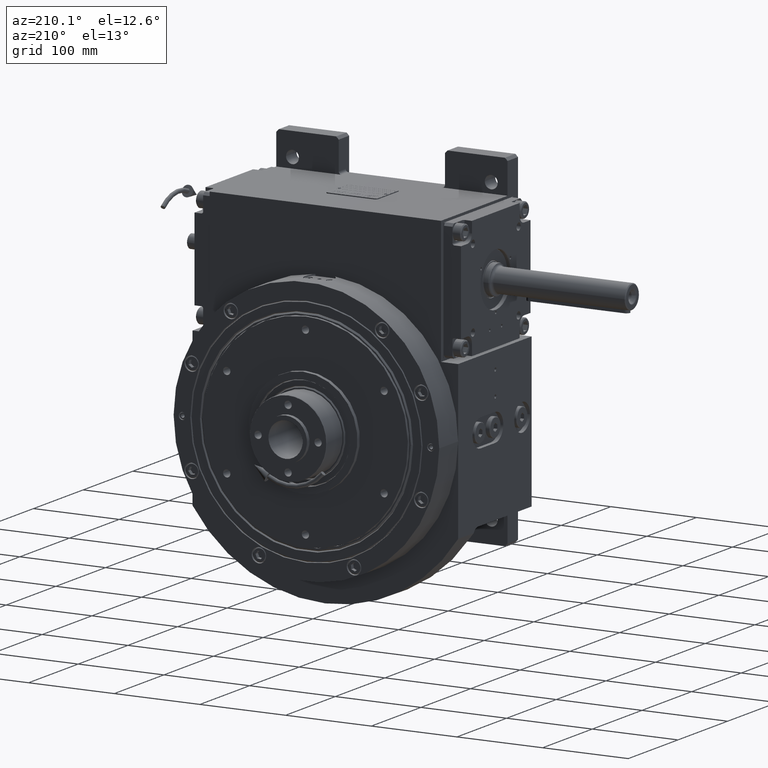
[diagram: clean part render]
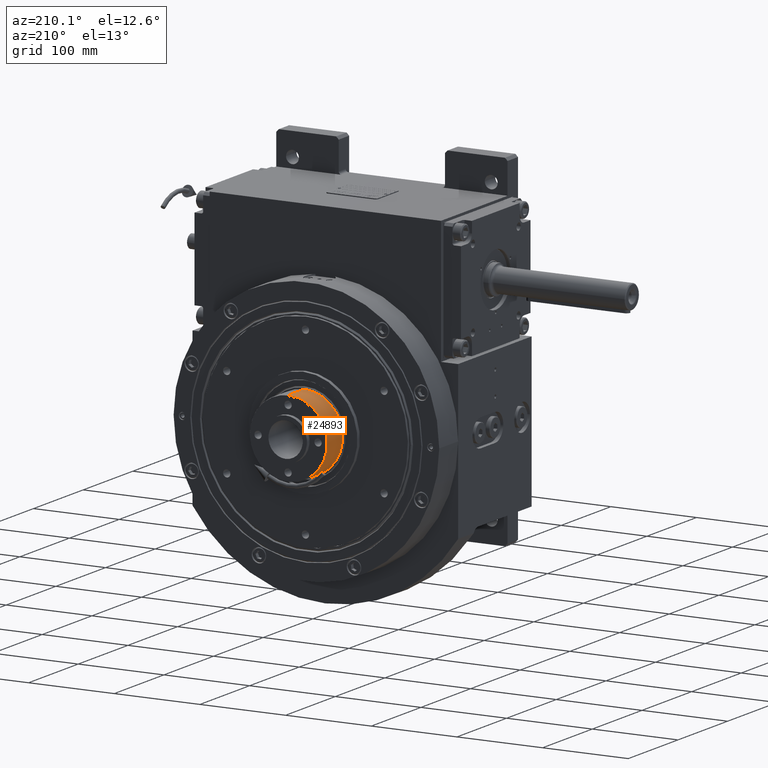
[diagram: same view with one face highlighted and labeled with its STEP entity id]
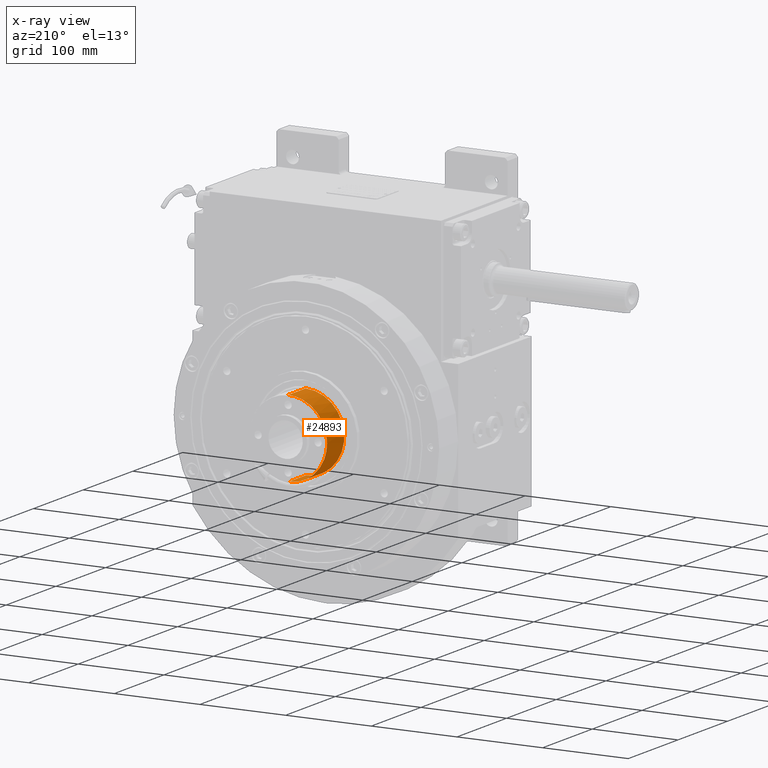
[diagram: x-ray of the same camera — body ghosted, the highlighted face saturated]
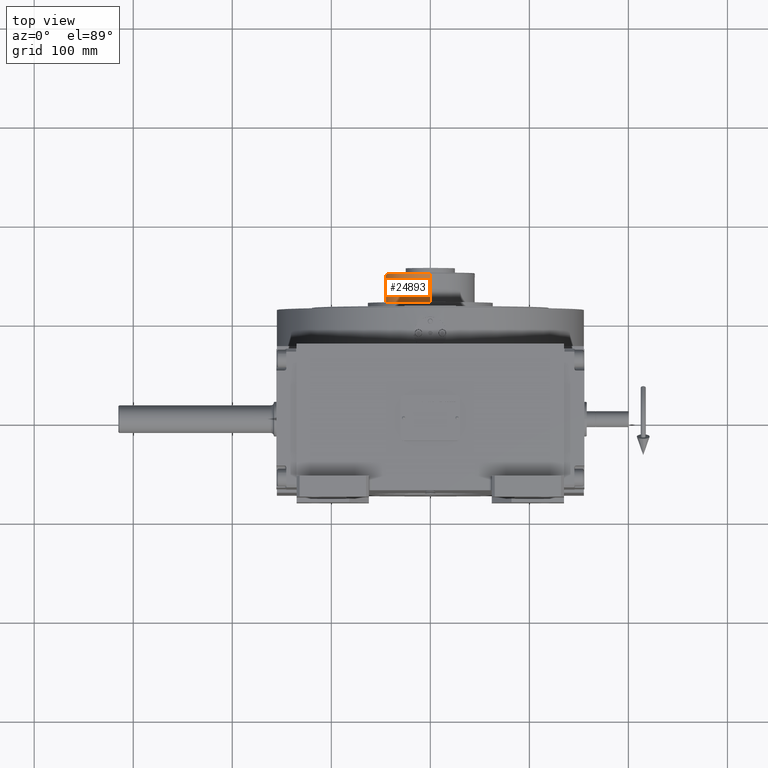
[diagram: same view with one face highlighted and labeled with its STEP entity id]
A machine part, auxiliary view. The second image highlights one B-rep face of the part: STEP entity #24893.
The next image is the same camera in x-ray: the body ghosted, the highlighted face saturated — about 0% of this face is hidden behind the body in this view.
A second angle (top view) of the same face is appended — the face is thin or edge-on in the first view.
In plain terms, the highlighted cylindrical surface (partial cylindrical patch) has radius 45 mm, axis along (0, -1, 0).
Its self-contained STEP definition (entity closure, byte-faithful):
#482 = CARTESIAN_POINT ( 'NONE',  ( -42.70167979977107109, -14.49970635574647559, -62.00000195355909227 ) ) ;
#1183 = CARTESIAN_POINT ( 'NONE',  ( -19.94180666511305233, -40.44748804383691265, -62.00000195355905674 ) ) ;
#1462 = EDGE_CURVE ( 'NONE', #19581, #42328, #16736, .T. ) ;
#2645 = DIRECTION ( 'NONE',  ( 0.000000000000000000, 0.000000000000000000, -1.000000000000000000 ) ) ;
#2760 = CARTESIAN_POINT ( 'NONE',  ( -45.00000000000000000, 0.000000000000000000, -10.99999999999999645 ) ) ;
#3346 = ORIENTED_EDGE ( 'NONE', *, *, #1462, .F. ) ;
#5642 = B_SPLINE_CURVE_WITH_KNOTS ( 'NONE', 3,
 ( #44366, #54690, #61136, #66113, #44024, #1183, #55412, #39005, #17965, #12250, #60419, #66822, #65776, #482, #60777, #6549, #28266, #33991 ),
 .UNSPECIFIED., .F., .F.,
 ( 4, 2, 2, 2, 2, 2, 2, 2, 4 ),
 ( 0.5000000000000000000, 0.5625000000000001110, 0.6250000000000001110, 0.6875000000000001110, 0.7500000000000002220, 0.8125000000000001110, 0.8750000000000000000, 0.9375000000000000000, 1.000000000000000000 ),
 .UNSPECIFIED. ) ;
#6549 = CARTESIAN_POINT ( 'NONE',  ( -44.70993137818921781, -5.890414101118349954, -62.00000195355912780 ) ) ;
#8702 = CARTESIAN_POINT ( 'NONE',  ( 29.73720732302872705, -33.90241057435635241, -62.00000195355895727 ) ) ;
#8731 = EDGE_CURVE ( 'NONE', #42328, #34488, #45811, .T. ) ;
#8872 = CARTESIAN_POINT ( 'NONE',  ( 0.000000000000000000, 0.000000000000000000, -27.49999999999999645 ) ) ;
#9719 = CARTESIAN_POINT ( 'NONE',  ( -45.00000000000000000, 0.000000000000000000, -27.49999999999999645 ) ) ;
#12051 = CARTESIAN_POINT ( 'NONE',  ( 45.00000000000000000, 5.510910596163089556E-15, -27.49999999999999645 ) ) ;
#12250 = CARTESIAN_POINT ( 'NONE',  ( -33.90241057435634531, -29.73720732302948377, -62.00000195355906385 ) ) ;
#13359 = CARTESIAN_POINT ( 'NONE',  ( 45.00000000000000000, 5.510910596163089556E-15, -10.99999999999999645 ) ) ;
#14557 = ORIENTED_EDGE ( 'NONE', *, *, #14661, .T. ) ;
#14661 = EDGE_CURVE ( 'NONE', #19581, #54683, #29479, .T. ) ;
#14726 = FACE_OUTER_BOUND ( 'NONE', #50665, .T. ) ;
#14751 = CARTESIAN_POINT ( 'NONE',  ( 40.44748804383596763, -19.94180666511282851, -62.00000195355895727 ) ) ;
#16733 = VERTEX_POINT ( 'NONE', #52173 ) ;
#16736 = CIRCLE ( 'NONE', #25846, 45.00000000000000000 ) ;
#17965 = CARTESIAN_POINT ( 'NONE',  ( -29.73720732302955838, -33.90241057435633820, -62.00000195355906385 ) ) ;
#19581 = VERTEX_POINT ( 'NONE', #9719 ) ;
#19762 = ORIENTED_EDGE ( 'NONE', *, *, #8731, .F. ) ;
#20111 = CARTESIAN_POINT ( 'NONE',  ( 19.94180666511218192, -40.44748804383692686, -62.00000195355899990 ) ) ;
#21632 = EDGE_CURVE ( 'NONE', #16733, #54683, #5642, .T. ) ;
#21921 = CARTESIAN_POINT ( 'NONE',  ( -45.00000134179759925, -5.520705812861970104E-08, -62.00000048850736079 ) ) ;
#24496 = DIRECTION ( 'NONE',  ( 0.000000000000000000, 0.000000000000000000, -1.000000000000000000 ) ) ;
#24893 = ADVANCED_FACE ( 'NONE', ( #14726 ), #36845, .T. ) ;
#25082 = CARTESIAN_POINT ( 'NONE',  ( 5.890414101117868562, -44.70993137818951624, -62.00000195355901411 ) ) ;
#25846 = AXIS2_PLACEMENT_3D ( 'NONE', #8872, #56354, #45982 ) ;
#28266 = CARTESIAN_POINT ( 'NONE',  ( -45.00000536736198598, -2.945243464033459713, -62.00000195355912780 ) ) ;
#29479 = LINE ( 'NONE', #2760, #37433 ) ;
#30434 = CARTESIAN_POINT ( 'NONE',  ( 22.55178302665163415, -39.05242661402575521, -62.00000195355900701 ) ) ;
#30790 = CARTESIAN_POINT ( 'NONE',  ( 35.77984741879979680, -27.44954390900534591, -62.00000195355895016 ) ) ;
#33991 = CARTESIAN_POINT ( 'NONE',  ( -45.00000134179759925, -5.520705812861970104E-08, -62.00000048850736079 ) ) ;
#34488 = VERTEX_POINT ( 'NONE', #36415 ) ;
#35515 = EDGE_CURVE ( 'NONE', #34488, #16733, #45034, .T. ) ;
#35522 = ORIENTED_EDGE ( 'NONE', *, *, #35515, .F. ) ;
#36172 = CARTESIAN_POINT ( 'NONE',  ( 42.70167979977026107, -14.49970635574649158, -62.00000195355892885 ) ) ;
#36415 = CARTESIAN_POINT ( 'NONE',  ( 45.00000000000000000, 5.510910596163089556E-15, -62.00000024425304446 ) ) ;
#36513 = CARTESIAN_POINT ( 'NONE',  ( 27.44954390900459984, -35.77984741880064945, -62.00000195355897858 ) ) ;
#36845 = CYLINDRICAL_SURFACE ( 'NONE', #59192, 45.00000000000000000 ) ;
#37433 = VECTOR ( 'NONE', #24496, 1000.000000000000000 ) ;
#39005 = CARTESIAN_POINT ( 'NONE',  ( -27.44954390900544894, -35.77984741880063524, -62.00000195355908517 ) ) ;
#40127 = ORIENTED_EDGE ( 'NONE', *, *, #21632, .F. ) ;
#41883 = CARTESIAN_POINT ( 'NONE',  ( 11.66771697457350676, -43.56075438656112198, -62.00000195355899280 ) ) ;
#42328 = VERTEX_POINT ( 'NONE', #12051 ) ;
#42561 = DIRECTION ( 'NONE',  ( -1.000000000000000000, 0.000000000000000000, 0.000000000000000000 ) ) ;
#44024 = CARTESIAN_POINT ( 'NONE',  ( -14.49970635574677758, -42.70167979977124872, -62.00000195355902122 ) ) ;
#44366 = CARTESIAN_POINT ( 'NONE',  ( -4.311450604814387473E-13, -45.00000268368096812, -62.00000097677928323 ) ) ;
#45034 = B_SPLINE_CURVE_WITH_KNOTS ( 'NONE', 3,
 ( #63993, #62923, #52213, #46522, #36172, #14751, #57594, #30790, #57229, #8702, #36513, #30434, #20111, #67922, #41883, #25082, #46866, #58306 ),
 .UNSPECIFIED., .F., .F.,
 ( 4, 2, 2, 2, 2, 2, 2, 2, 4 ),
 ( 0.000000000000000000, 0.06250000000000001388, 0.1250000000000000278, 0.1875000000000000555, 0.2500000000000000555, 0.3125000000000000000, 0.3749999999999999445, 0.4375000000000000000, 0.5000000000000000000 ),
 .UNSPECIFIED. ) ;
#45811 = LINE ( 'NONE', #13359, #67291 ) ;
#45982 = DIRECTION ( 'NONE',  ( 0.000000000000000000, 1.000000000000000000, 7.709882115452475701E-17 ) ) ;
#46522 = CARTESIAN_POINT ( 'NONE',  ( 43.56075438656010590, -11.66771697457405566, -62.00000195355894306 ) ) ;
#46866 = CARTESIAN_POINT ( 'NONE',  ( 2.945243464033009406, -45.00000536736233414, -62.00000195355901411 ) ) ;
#50665 = EDGE_LOOP ( 'NONE', ( #3346, #14557, #40127, #35522, #19762 ) ) ;
#52173 = CARTESIAN_POINT ( 'NONE',  ( -4.311450604814387473E-13, -45.00000268368096812, -62.00000097677928323 ) ) ;
#52213 = CARTESIAN_POINT ( 'NONE',  ( 44.70993137818842200, -5.890414101118358836, -62.00000195355892174 ) ) ;
#54683 = VERTEX_POINT ( 'NONE', #21921 ) ;
#54690 = CARTESIAN_POINT ( 'NONE',  ( -2.945243464033868719, -45.00000536736232704, -62.00000195355902122 ) ) ;
#55412 = CARTESIAN_POINT ( 'NONE',  ( -22.55178302665246903, -39.05242661402571258, -62.00000195355906385 ) ) ;
#56354 = DIRECTION ( 'NONE',  ( 5.551115123125974987E-17, -1.110223024625163196E-16, 1.000000000000000000 ) ) ;
#57229 = CARTESIAN_POINT ( 'NONE',  ( 33.90241057435551397, -29.73720732302951575, -62.00000195355896437 ) ) ;
#57594 = CARTESIAN_POINT ( 'NONE',  ( 39.05242661402479598, -22.55178302665230561, -62.00000195355895016 ) ) ;
#58306 = CARTESIAN_POINT ( 'NONE',  ( -4.311450604814387473E-13, -45.00000268368096812, -62.00000097677928323 ) ) ;
#58638 = CARTESIAN_POINT ( 'NONE',  ( 0.000000000000000000, 0.000000000000000000, -9.999999999999994671 ) ) ;
#59192 = AXIS2_PLACEMENT_3D ( 'NONE', #58638, #68244, #42561 ) ;
#60419 = CARTESIAN_POINT ( 'NONE',  ( -35.77984741880062103, -27.44954390900531749, -62.00000195355907806 ) ) ;
#60777 = CARTESIAN_POINT ( 'NONE',  ( -43.56075438656088750, -11.66771697457403789, -62.00000195355909227 ) ) ;
#61136 = CARTESIAN_POINT ( 'NONE',  ( -5.890414101118728318, -44.70993137818950203, -62.00000195355902122 ) ) ;
#62923 = CARTESIAN_POINT ( 'NONE',  ( 45.00000536736119727, -2.945243464033465930, -62.00000195355892174 ) ) ;
#63993 = CARTESIAN_POINT ( 'NONE',  ( 45.00000000000000000, 5.510910596163089556E-15, -62.00000024425304446 ) ) ;
#65776 = CARTESIAN_POINT ( 'NONE',  ( -40.44748804383677765, -19.94180666511280720, -62.00000195355909938 ) ) ;
#66113 = CARTESIAN_POINT ( 'NONE',  ( -11.66771697457436119, -43.56075438656112198, -62.00000195355903543 ) ) ;
#66822 = CARTESIAN_POINT ( 'NONE',  ( -39.05242661402563442, -22.55178302665229850, -62.00000195355908517 ) ) ;
#67291 = VECTOR ( 'NONE', #2645, 1000.000000000000000 ) ;
#67922 = CARTESIAN_POINT ( 'NONE',  ( 14.49970635574591071, -42.70167979977128425, -62.00000195355899990 ) ) ;
#68244 = DIRECTION ( 'NONE',  ( 0.000000000000000000, 0.000000000000000000, 1.000000000000000000 ) ) ;